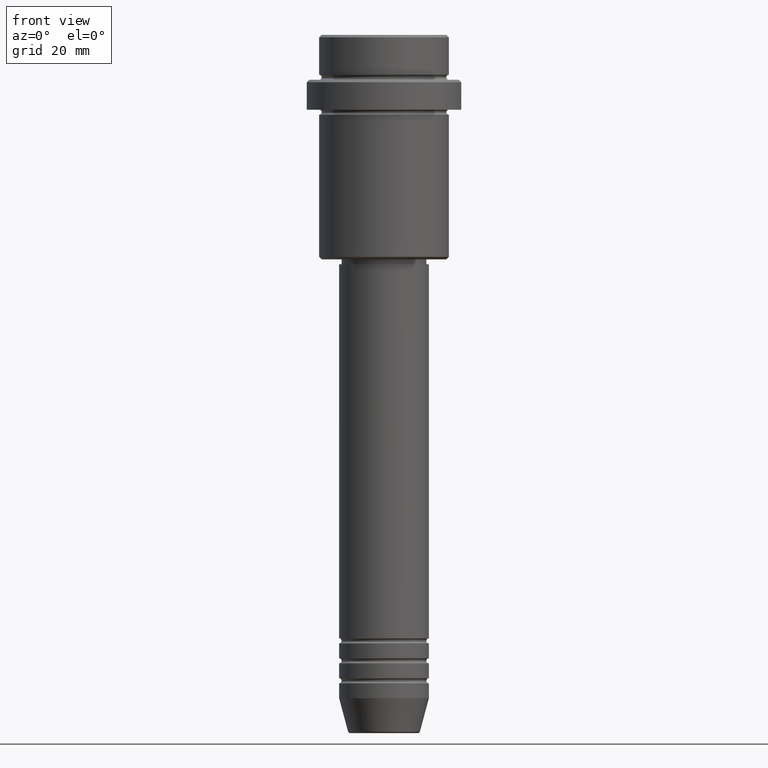
[diagram: clean part render]
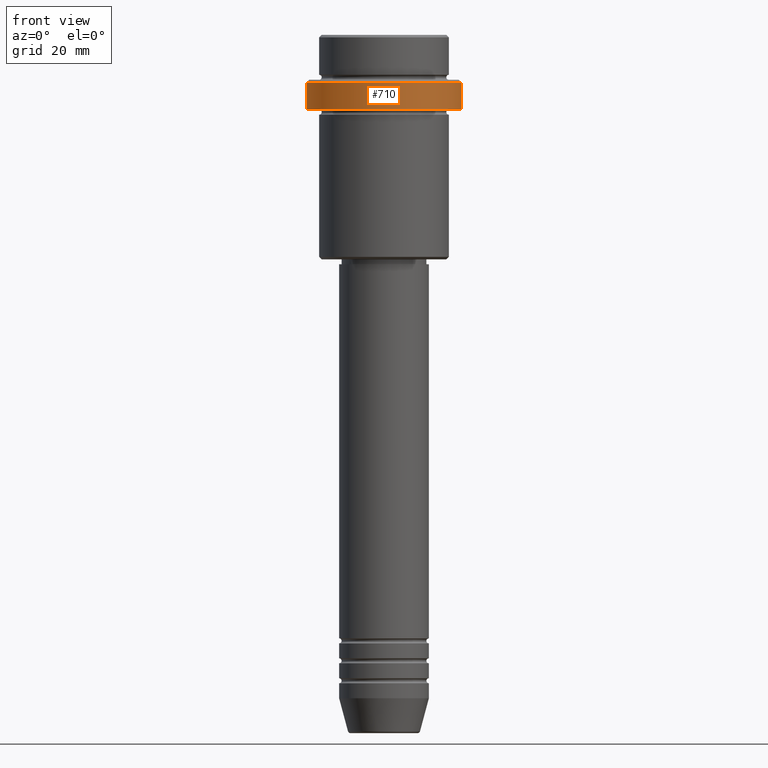
[diagram: same view with one face highlighted and labeled with its STEP entity id]
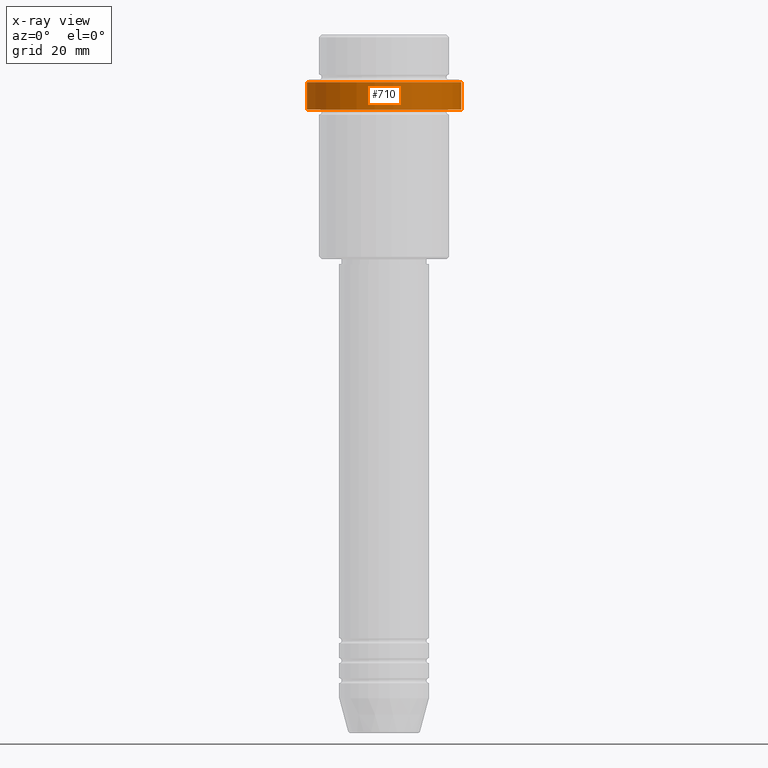
[diagram: x-ray of the same camera — body ghosted, the highlighted face saturated]
A machine part, front view. The second image highlights one B-rep face of the part: STEP entity #710.
The next image is the same camera in x-ray: the body ghosted, the highlighted face saturated — about 0% of this face is hidden behind the body in this view.
In plain terms, the highlighted cylindrical surface (partial cylindrical patch) has radius 15.5 mm, axis along (-0, -0, 1).
Its self-contained STEP definition (entity closure, byte-faithful):
#92 = ORIENTED_EDGE ( 'NONE', *, *, #901, .T. ) ;
#95 = VECTOR ( 'NONE', #1118, 1000.000000000000000 ) ;
#150 = AXIS2_PLACEMENT_3D ( 'NONE', #443, #885, #1320 ) ;
#172 = ORIENTED_EDGE ( 'NONE', *, *, #729, .F. ) ;
#175 = VERTEX_POINT ( 'NONE', #530 ) ;
#276 = ORIENTED_EDGE ( 'NONE', *, *, #325, .T. ) ;
#300 = CARTESIAN_POINT ( 'NONE',  ( -15.50000000000000000, 1.898202538678397557E-15, -9.499999999999984013 ) ) ;
#307 = DIRECTION ( 'NONE',  ( -0.000000000000000000, -0.000000000000000000, 1.000000000000000000 ) ) ;
#325 = EDGE_CURVE ( 'NONE', #1069, #175, #591, .T. ) ;
#332 = AXIS2_PLACEMENT_3D ( 'NONE', #910, #368, #371 ) ;
#368 = DIRECTION ( 'NONE',  ( -0.000000000000000000, -0.000000000000000000, 1.000000000000000000 ) ) ;
#371 = DIRECTION ( 'NONE',  ( 1.000000000000000000, 0.000000000000000000, 0.000000000000000000 ) ) ;
#416 = DIRECTION ( 'NONE',  ( -0.000000000000000000, -0.000000000000000000, 1.000000000000000000 ) ) ;
#438 = LINE ( 'NONE', #531, #593 ) ;
#443 = CARTESIAN_POINT ( 'NONE',  ( 0.000000000000000000, 0.000000000000000000, -9.499999999999984013 ) ) ;
#500 = CARTESIAN_POINT ( 'NONE',  ( -15.50000000000000000, 1.898202538678397557E-15, -15.00000000000000000 ) ) ;
#510 = VERTEX_POINT ( 'NONE', #300 ) ;
#530 = CARTESIAN_POINT ( 'NONE',  ( 15.50000000000000000, 0.000000000000000000, -15.00000000000000000 ) ) ;
#531 = CARTESIAN_POINT ( 'NONE',  ( -15.50000000000000000, 1.898202538678397557E-15, 0.000000000000000000 ) ) ;
#591 = CIRCLE ( 'NONE', #332, 15.50000000000000000 ) ;
#593 = VECTOR ( 'NONE', #307, 1000.000000000000000 ) ;
#634 = CARTESIAN_POINT ( 'NONE',  ( 0.000000000000000000, 0.000000000000000000, 0.000000000000000000 ) ) ;
#636 = VERTEX_POINT ( 'NONE', #958 ) ;
#647 = CYLINDRICAL_SURFACE ( 'NONE', #743, 15.50000000000000000 ) ;
#699 = CARTESIAN_POINT ( 'NONE',  ( 15.50000000000000000, 0.000000000000000000, 0.000000000000000000 ) ) ;
#710 = ADVANCED_FACE ( 'NONE', ( #977 ), #647, .T. ) ;
#729 = EDGE_CURVE ( 'NONE', #1069, #510, #438, .T. ) ;
#736 = EDGE_LOOP ( 'NONE', ( #172, #276, #92, #1214 ) ) ;
#743 = AXIS2_PLACEMENT_3D ( 'NONE', #634, #416, #863 ) ;
#863 = DIRECTION ( 'NONE',  ( 1.000000000000000000, 0.000000000000000000, 0.000000000000000000 ) ) ;
#885 = DIRECTION ( 'NONE',  ( 0.000000000000000000, 0.000000000000000000, -1.000000000000000000 ) ) ;
#901 = EDGE_CURVE ( 'NONE', #175, #636, #1229, .T. ) ;
#910 = CARTESIAN_POINT ( 'NONE',  ( 0.000000000000000000, 0.000000000000000000, -15.00000000000000000 ) ) ;
#958 = CARTESIAN_POINT ( 'NONE',  ( 15.50000000000000000, 0.000000000000000000, -9.499999999999984013 ) ) ;
#977 = FACE_OUTER_BOUND ( 'NONE', #736, .T. ) ;
#1069 = VERTEX_POINT ( 'NONE', #500 ) ;
#1118 = DIRECTION ( 'NONE',  ( -0.000000000000000000, -0.000000000000000000, 1.000000000000000000 ) ) ;
#1214 = ORIENTED_EDGE ( 'NONE', *, *, #1349, .T. ) ;
#1229 = LINE ( 'NONE', #699, #95 ) ;
#1316 = CIRCLE ( 'NONE', #150, 15.50000000000000000 ) ;
#1320 = DIRECTION ( 'NONE',  ( 1.000000000000000000, 0.000000000000000000, 0.000000000000000000 ) ) ;
#1349 = EDGE_CURVE ( 'NONE', #636, #510, #1316, .T. ) ;